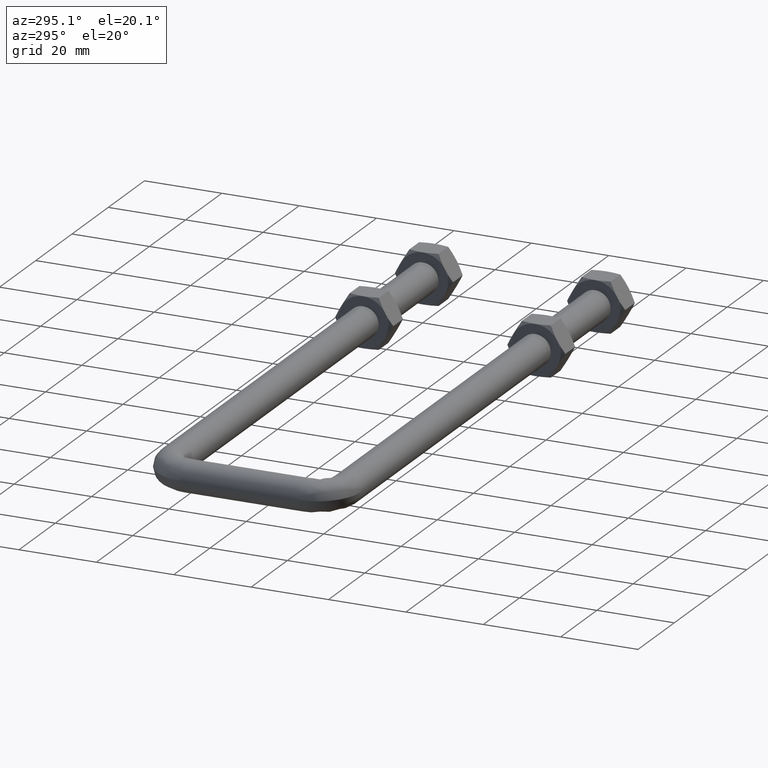
[diagram: clean part render]
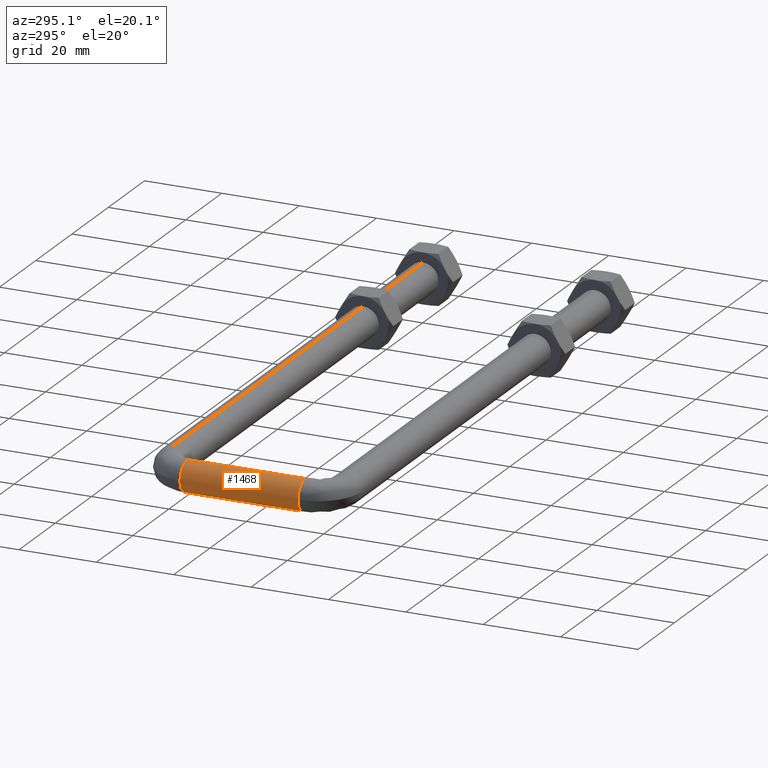
[diagram: same view with one face highlighted and labeled with its STEP entity id]
A machine part, auxiliary view. The second image highlights one B-rep face of the part: STEP entity #1468.
In plain terms, the highlighted cylindrical surface (edge-blend (fillet) strip) has radius 4 mm, axis along (0, -1, 0).
Its self-contained STEP definition (entity closure, byte-faithful):
#4 = CARTESIAN_POINT ( 'NONE',  ( 0.0000000000000000000, 15.25000000000000000, -4.000000000000000000 ) ) ;
#8 = CIRCLE ( 'NONE', #599, 4.000000000000000000 ) ;
#19 = CARTESIAN_POINT ( 'NONE',  ( 4.898587196589412800E-016, 15.25000000000000000, 4.000000000000000000 ) ) ;
#54 = CARTESIAN_POINT ( 'NONE',  ( 0.0000000000000000000, -15.25000000000000000, -4.000000000000000000 ) ) ;
#59 = CARTESIAN_POINT ( 'NONE',  ( 0.0000000000000000000, 15.25000000000000000, 0.0000000000000000000 ) ) ;
#78 = CARTESIAN_POINT ( 'NONE',  ( 0.0000000000000000000, 15.25000000000000000, 0.0000000000000000000 ) ) ;
#108 = EDGE_CURVE ( 'NONE', #633, #1068, #199, .T. ) ;
#187 = CARTESIAN_POINT ( 'NONE',  ( -3.999999999988348000, -15.25000000000000000, -1.466061986299362000E-010 ) ) ;
#191 = CARTESIAN_POINT ( 'NONE',  ( 0.0000000000000000000, -15.25000000000000000, 0.0000000000000000000 ) ) ;
#199 = LINE ( 'NONE', #19, #1438 ) ;
#223 = CYLINDRICAL_SURFACE ( 'NONE', #607, 4.000000000000000000 ) ;
#265 = DIRECTION ( 'NONE',  ( 0.0000000000000000000, -1.000000000000000000, 0.0000000000000000000 ) ) ;
#299 = DIRECTION ( 'NONE',  ( -0.0000000000000000000, 1.000000000000000000, -0.0000000000000000000 ) ) ;
#308 = CARTESIAN_POINT ( 'NONE',  ( 0.0000000000000000000, 15.25000000000000000, -4.000000000000000000 ) ) ;
#315 = ORIENTED_EDGE ( 'NONE', *, *, #1301, .T. ) ;
#428 = EDGE_CURVE ( 'NONE', #1068, #926, #968, .T. ) ;
#517 = DIRECTION ( 'NONE',  ( 0.0000000000000000000, -1.000000000000000000, 0.0000000000000000000 ) ) ;
#528 = DIRECTION ( 'NONE',  ( 1.000000000000000000, 0.0000000000000000000, 0.0000000000000000000 ) ) ;
#538 = ORIENTED_EDGE ( 'NONE', *, *, #428, .F. ) ;
#599 = AXIS2_PLACEMENT_3D ( 'NONE', #59, #788, #949 ) ;
#607 = AXIS2_PLACEMENT_3D ( 'NONE', #1010, #765, #875 ) ;
#618 = CARTESIAN_POINT ( 'NONE',  ( 4.898587196589412800E-016, -15.25000000000000000, 4.000000000000000000 ) ) ;
#633 = VERTEX_POINT ( 'NONE', #1437 ) ;
#649 = ORIENTED_EDGE ( 'NONE', *, *, #108, .F. ) ;
#656 = EDGE_CURVE ( 'NONE', #1169, #633, #8, .T. ) ;
#765 = DIRECTION ( 'NONE',  ( 0.0000000000000000000, -1.000000000000000000, 0.0000000000000000000 ) ) ;
#788 = DIRECTION ( 'NONE',  ( -0.0000000000000000000, 1.000000000000000000, -0.0000000000000000000 ) ) ;
#797 = CIRCLE ( 'NONE', #1117, 4.000000000000000000 ) ;
#810 = DIRECTION ( 'NONE',  ( 0.0000000000000000000, -1.000000000000000000, 0.0000000000000000000 ) ) ;
#814 = DIRECTION ( 'NONE',  ( 1.000000000000000000, 0.0000000000000000000, 0.0000000000000000000 ) ) ;
#834 = DIRECTION ( 'NONE',  ( 0.0000000000000000000, -1.000000000000000000, 0.0000000000000000000 ) ) ;
#875 = DIRECTION ( 'NONE',  ( 0.0000000000000000000, 0.0000000000000000000, -1.000000000000000000 ) ) ;
#891 = FACE_OUTER_BOUND ( 'NONE', #1142, .T. ) ;
#893 = AXIS2_PLACEMENT_3D ( 'NONE', #1242, #517, #528 ) ;
#913 = DIRECTION ( 'NONE',  ( 0.0000000000000000000, 0.0000000000000000000, -1.000000000000000000 ) ) ;
#926 = VERTEX_POINT ( 'NONE', #187 ) ;
#949 = DIRECTION ( 'NONE',  ( 0.0000000000000000000, 0.0000000000000000000, -1.000000000000000000 ) ) ;
#953 = VERTEX_POINT ( 'NONE', #308 ) ;
#968 = CIRCLE ( 'NONE', #1453, 4.000000000000000000 ) ;
#1010 = CARTESIAN_POINT ( 'NONE',  ( 0.0000000000000000000, 15.25000000000000000, 0.0000000000000000000 ) ) ;
#1068 = VERTEX_POINT ( 'NONE', #618 ) ;
#1084 = EDGE_CURVE ( 'NONE', #953, #1169, #797, .T. ) ;
#1117 = AXIS2_PLACEMENT_3D ( 'NONE', #78, #299, #913 ) ;
#1142 = EDGE_LOOP ( 'NONE', ( #649, #1304, #1232, #315, #1153, #538 ) ) ;
#1153 = ORIENTED_EDGE ( 'NONE', *, *, #1349, .F. ) ;
#1169 = VERTEX_POINT ( 'NONE', #1278 ) ;
#1188 = VECTOR ( 'NONE', #834, 1000.000000000000000 ) ;
#1232 = ORIENTED_EDGE ( 'NONE', *, *, #1084, .F. ) ;
#1242 = CARTESIAN_POINT ( 'NONE',  ( 0.0000000000000000000, -15.25000000000000000, 0.0000000000000000000 ) ) ;
#1278 = CARTESIAN_POINT ( 'NONE',  ( -3.999999999999998200, 15.25000000000000000, 1.347615030862776800E-009 ) ) ;
#1301 = EDGE_CURVE ( 'NONE', #953, #1475, #1507, .T. ) ;
#1304 = ORIENTED_EDGE ( 'NONE', *, *, #656, .F. ) ;
#1349 = EDGE_CURVE ( 'NONE', #926, #1475, #1433, .T. ) ;
#1433 = CIRCLE ( 'NONE', #893, 4.000000000000000000 ) ;
#1437 = CARTESIAN_POINT ( 'NONE',  ( 4.898587196589412800E-016, 15.25000000000000000, 4.000000000000000000 ) ) ;
#1438 = VECTOR ( 'NONE', #810, 1000.000000000000000 ) ;
#1453 = AXIS2_PLACEMENT_3D ( 'NONE', #191, #265, #814 ) ;
#1468 = ADVANCED_FACE ( 'NONE', ( #891 ), #223, .T. ) ;
#1475 = VERTEX_POINT ( 'NONE', #54 ) ;
#1507 = LINE ( 'NONE', #4, #1188 ) ;